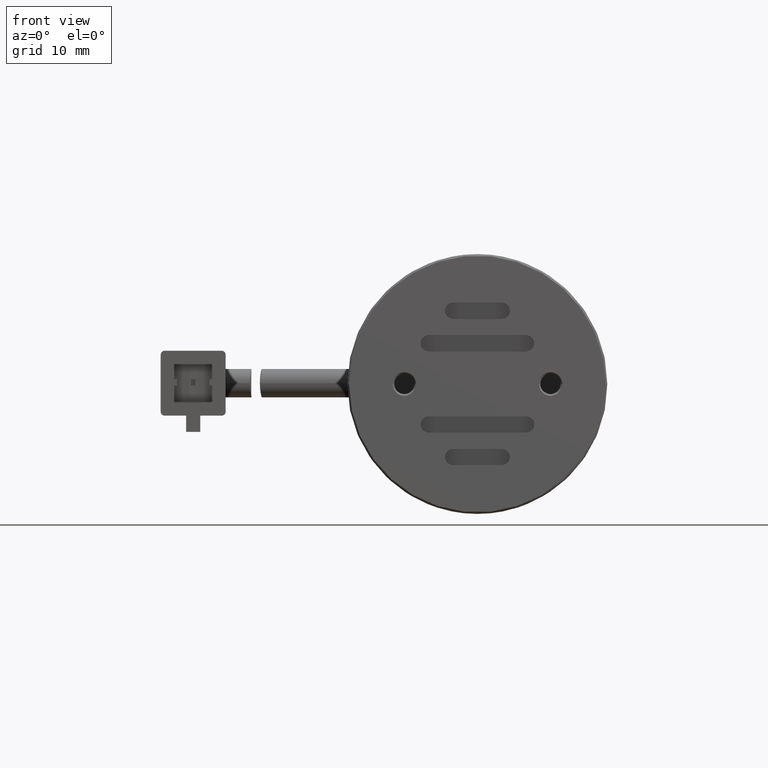
[diagram: clean part render]
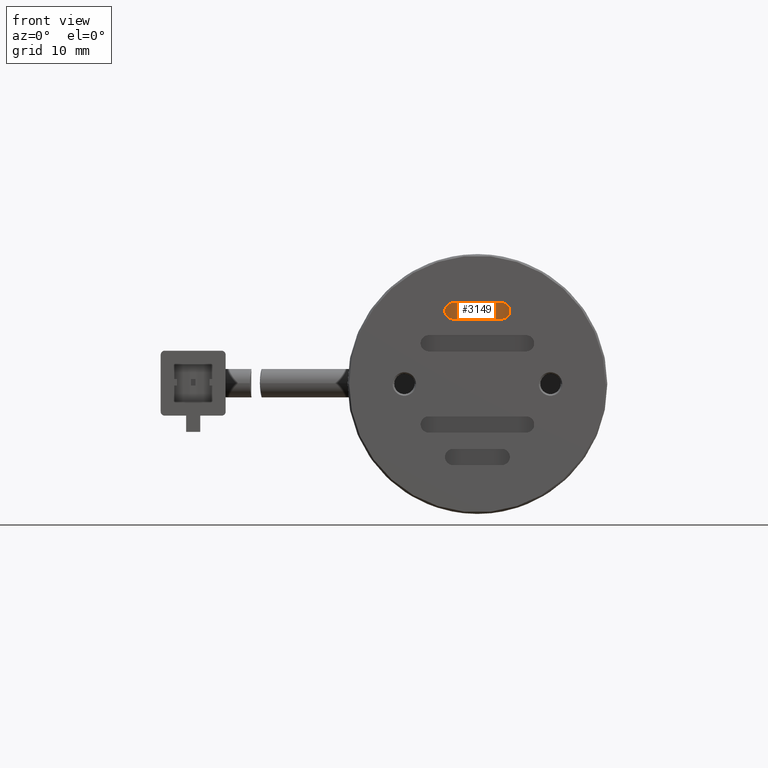
[diagram: same view with one face highlighted and labeled with its STEP entity id]
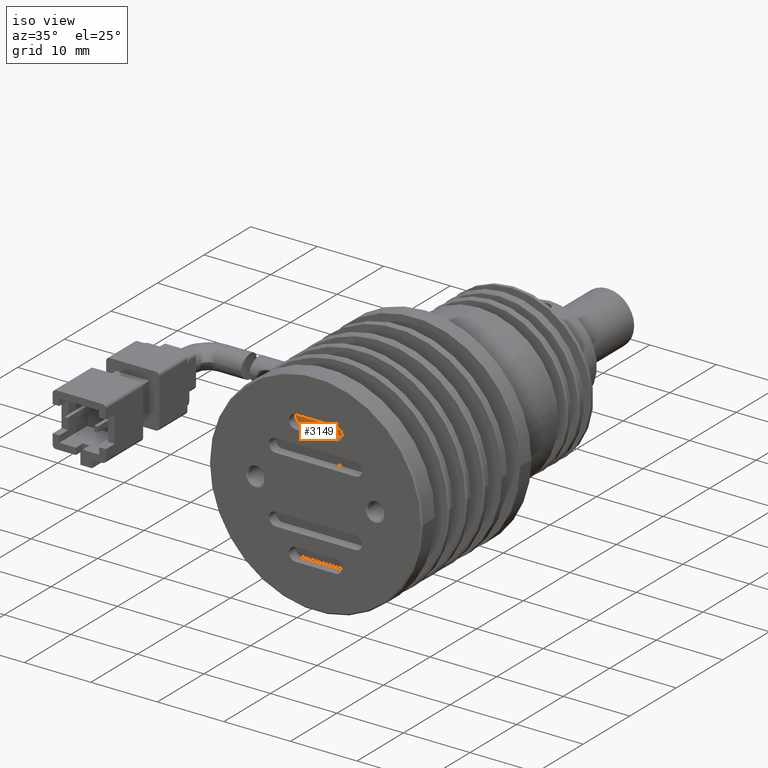
[diagram: same view with one face highlighted and labeled with its STEP entity id]
A machine part, front view. The second image highlights one B-rep face of the part: STEP entity #3149.
A second angle (iso view) of the same face is appended — the face is thin or edge-on in the first view.
In plain terms, the highlighted planar face has unit normal (-0, -1, -0).
Its self-contained STEP definition (entity closure, byte-faithful):
#1189 = VECTOR ( 'NONE', #19752, 1000.000000000000000 ) ;
#1628 = ORIENTED_EDGE ( 'NONE', *, *, #9220, .F. ) ;
#2163 = CARTESIAN_POINT ( 'NONE',  ( -0.4250662123643066900, -38.21493551001260200, 0.8259640783405825000 ) ) ;
#2899 = CARTESIAN_POINT ( 'NONE',  ( 5.574933787635692400, -38.21493551001260200, 0.8259640783405807200 ) ) ;
#3149 = ADVANCED_FACE ( 'NONE', ( #14086 ), #10967, .T. ) ;
#3160 = CIRCLE ( 'NONE', #4543, 0.9999999999999991100 ) ;
#3855 = ORIENTED_EDGE ( 'NONE', *, *, #16407, .T. ) ;
#3860 = CARTESIAN_POINT ( 'NONE',  ( -0.4250662123643075300, -38.21493551001260200, -1.174035921659415800 ) ) ;
#4374 = CARTESIAN_POINT ( 'NONE',  ( 5.574933787635692400, -38.21493551001260200, -1.174035921659415800 ) ) ;
#4543 = AXIS2_PLACEMENT_3D ( 'NONE', #14498, #5328, #16030 ) ;
#5328 = DIRECTION ( 'NONE',  ( -0.0000000000000000000, -1.000000000000000000, 0.0000000000000000000 ) ) ;
#5657 = CARTESIAN_POINT ( 'NONE',  ( 5.574933787635692400, -38.21493551001260200, -0.1740359216594166700 ) ) ;
#6074 = DIRECTION ( 'NONE',  ( -1.000000000000000000, -0.0000000000000000000, 2.891205793294678300E-016 ) ) ;
#7088 = EDGE_LOOP ( 'NONE', ( #3855, #18196, #8997, #14629, #1628 ) ) ;
#7196 = DIRECTION ( 'NONE',  ( -1.000000000000000000, 0.0000000000000000000, 0.0000000000000000000 ) ) ;
#7943 = CARTESIAN_POINT ( 'NONE',  ( 5.574933787635692400, -38.21493551001260200, -0.1740359216594166700 ) ) ;
#8862 = AXIS2_PLACEMENT_3D ( 'NONE', #8962, #19693, #10508 ) ;
#8962 = CARTESIAN_POINT ( 'NONE',  ( -0.4250662123643075300, -38.21493551001260200, -0.1740359216594149200 ) ) ;
#8997 = ORIENTED_EDGE ( 'NONE', *, *, #10165, .F. ) ;
#9220 = EDGE_CURVE ( 'NONE', #17460, #16393, #17473, .T. ) ;
#9505 = DIRECTION ( 'NONE',  ( -1.000000000000000000, 0.0000000000000000000, 0.0000000000000000000 ) ) ;
#9847 = AXIS2_PLACEMENT_3D ( 'NONE', #7943, #18675, #9505 ) ;
#10165 = EDGE_CURVE ( 'NONE', #17809, #12752, #11563, .T. ) ;
#10444 = CARTESIAN_POINT ( 'NONE',  ( 5.574933787635692400, -38.21493551001260200, 0.8259640783405825000 ) ) ;
#10508 = DIRECTION ( 'NONE',  ( -1.000000000000000000, 0.0000000000000000000, 0.0000000000000000000 ) ) ;
#10967 = PLANE ( 'NONE',  #9847 ) ;
#11563 = LINE ( 'NONE', #13708, #14672 ) ;
#12405 = EDGE_CURVE ( 'NONE', #17809, #16393, #17646, .T. ) ;
#12752 = VERTEX_POINT ( 'NONE', #3860 ) ;
#13116 = CARTESIAN_POINT ( 'NONE',  ( -1.425066212364306800, -38.21493551001260200, -0.1740359216594149200 ) ) ;
#13250 = VERTEX_POINT ( 'NONE', #13116 ) ;
#13708 = CARTESIAN_POINT ( 'NONE',  ( 5.574933787635692400, -38.21493551001260200, -1.174035921659417600 ) ) ;
#13879 = EDGE_CURVE ( 'NONE', #13250, #12752, #3160, .T. ) ;
#14086 = FACE_OUTER_BOUND ( 'NONE', #7088, .T. ) ;
#14280 = AXIS2_PLACEMENT_3D ( 'NONE', #5657, #16354, #7196 ) ;
#14498 = CARTESIAN_POINT ( 'NONE',  ( -0.4250662123643075300, -38.21493551001260200, -0.1740359216594149200 ) ) ;
#14629 = ORIENTED_EDGE ( 'NONE', *, *, #12405, .T. ) ;
#14672 = VECTOR ( 'NONE', #6074, 1000.000000000000000 ) ;
#15539 = CIRCLE ( 'NONE', #8862, 0.9999999999999991100 ) ;
#16030 = DIRECTION ( 'NONE',  ( -1.000000000000000000, 0.0000000000000000000, 0.0000000000000000000 ) ) ;
#16354 = DIRECTION ( 'NONE',  ( -0.0000000000000000000, -1.000000000000000000, 0.0000000000000000000 ) ) ;
#16393 = VERTEX_POINT ( 'NONE', #10444 ) ;
#16407 = EDGE_CURVE ( 'NONE', #17460, #13250, #15539, .T. ) ;
#17460 = VERTEX_POINT ( 'NONE', #2163 ) ;
#17473 = LINE ( 'NONE', #2899, #1189 ) ;
#17646 = CIRCLE ( 'NONE', #14280, 0.9999999999999991100 ) ;
#17809 = VERTEX_POINT ( 'NONE', #4374 ) ;
#18196 = ORIENTED_EDGE ( 'NONE', *, *, #13879, .T. ) ;
#18675 = DIRECTION ( 'NONE',  ( -0.0000000000000000000, -1.000000000000000000, -0.0000000000000000000 ) ) ;
#19693 = DIRECTION ( 'NONE',  ( -0.0000000000000000000, -1.000000000000000000, 0.0000000000000000000 ) ) ;
#19752 = DIRECTION ( 'NONE',  ( 1.000000000000000000, -0.0000000000000000000, -2.891205793294678800E-016 ) ) ;